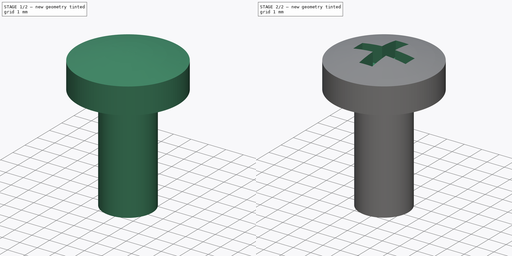
[diagram: build sequence overview — one tinted view per stage of 2, left to right]
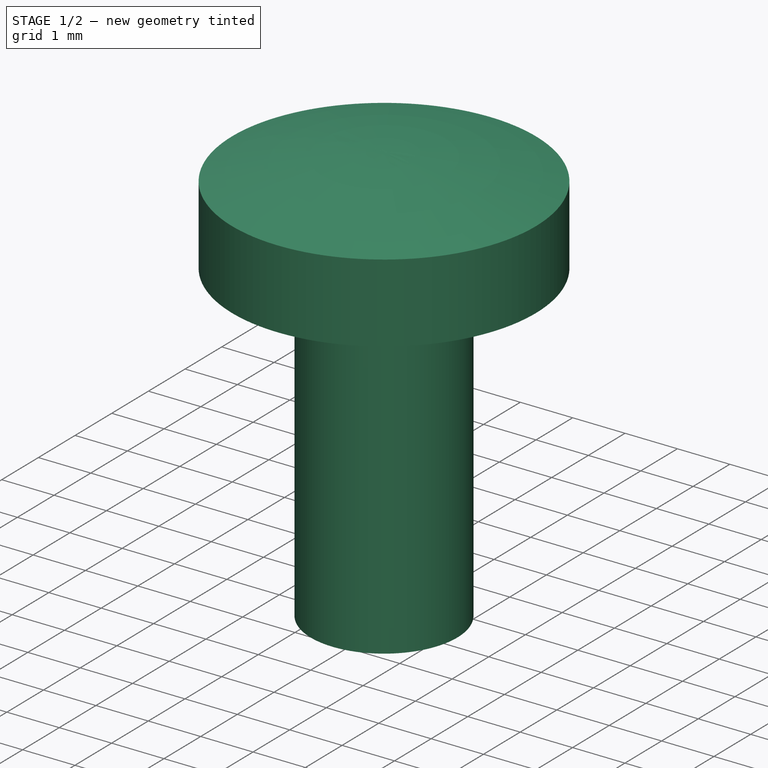
[diagram: stage 1 of 2 — iso view after this stage's code; geometry added in this stage tinted green]
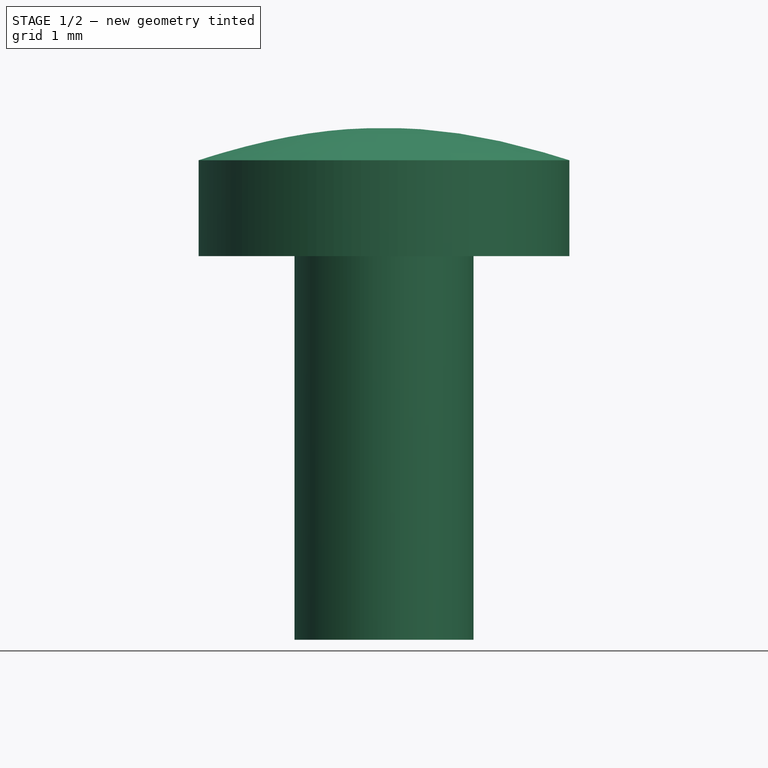
[diagram: stage 1 of 2 — front view after this stage's code; geometry added in this stage tinted green]
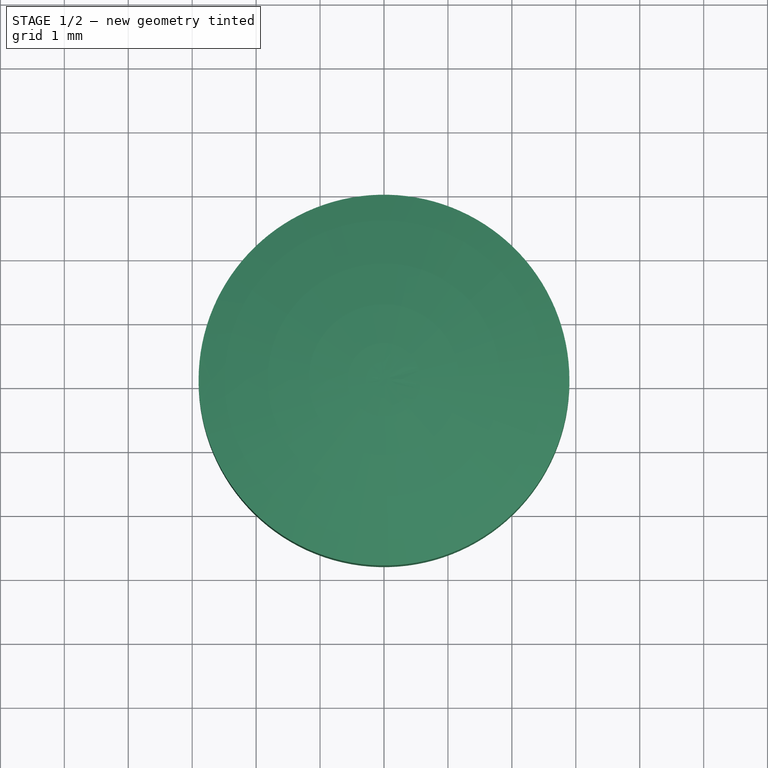
[diagram: stage 1 of 2 — top view after this stage's code; geometry added in this stage tinted green]
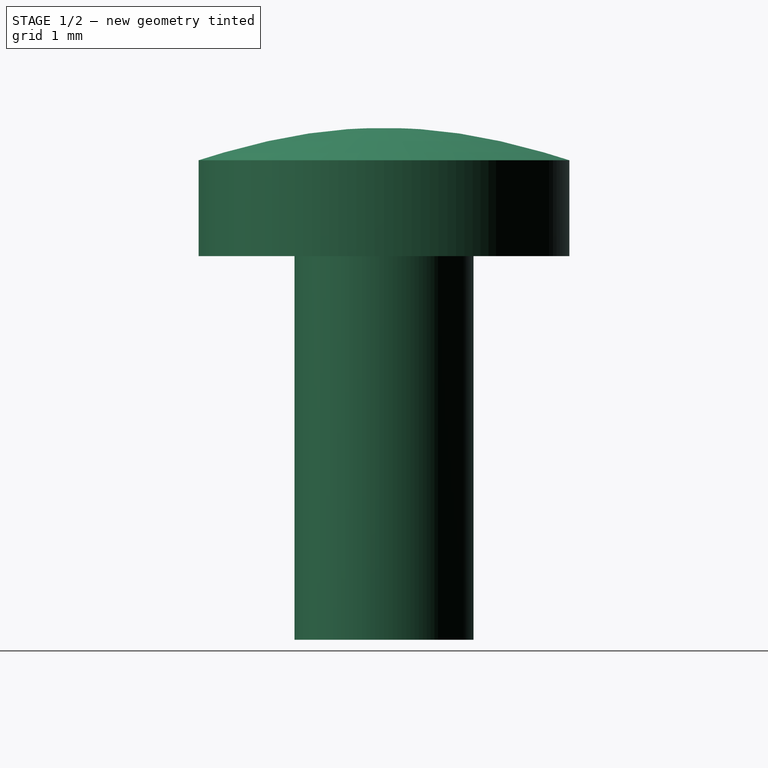
[diagram: stage 1 of 2 — right view after this stage's code; geometry added in this stage tinted green]
FCSTD DOCUMENT  (FreeCAD 0.19R17421 +113 (Git))
Label: Screw_M3x6_T_2.0_Panhead
License: All rights reserved
LicenseURL: http://en.wikipedia.org/wiki/All_rights_reserved
objects: Sketcher::SketchObject×2, PartDesign::Revolution×1, PartDesign::Pocket×1, PartDesign::Body×1
note: 7 computed .brp shape members not serialized (recipe doc carries the construction recipe); baked Part::Feature solids carry a one-line shape summary decoded from their .brp

FEATURE [Sketcher::SketchObject] Sketch
  MapMode = 5
  Placement = pos=(0,0,0) rot=(1,0,0;1.5708rad)
  Support = -> [XZ_Plane]
  sketch-geometry (11):
    g0: LineSegment StartX=0 StartY=-6 StartZ=0 EndX=-1.4 EndY=-6 EndZ=0
    g1: LineSegment StartX=-1.4 StartY=-6 StartZ=0 EndX=-1.4 EndY=0 EndZ=0
    g2: LineSegment StartX=-1.4 StartY=0 StartZ=0 EndX=-2.9 EndY=0 EndZ=0
    g3: LineSegment StartX=-2.9 StartY=0 StartZ=0 EndX=-2.9 EndY=1.5 EndZ=0
    g4: LineSegment StartX=0 StartY=-6 StartZ=0 EndX=0 EndY=2 EndZ=0
    g5: Circle [constr] CenterX=0 CenterY=2 CenterZ=0 NormalX=0 NormalY=0 NormalZ=1 AngleXU=0 Radius=0.3
    g6: Circle [constr] CenterX=-1.27 CenterY=2.02886 CenterZ=0 NormalX=0 NormalY=0 NormalZ=1 AngleXU=0 Radius=0.3
    g7: Circle [constr] CenterX=-2.9 CenterY=1.5 CenterZ=0 NormalX=0 NormalY=0 NormalZ=1 AngleXU=0 Radius=0.3
    g8: BSplineCurve PolesCount=3 KnotsCount=2 Degree=2 IsPeriodic=0
    g9: GeomPoint [constr] X=0 Y=2 Z=0
    g10: GeomPoint [constr] X=-2.9 Y=1.5 Z=0
  constraints (26):
    c: PointOnObject(g0,g-2)
    c: Horizontal(g0)
    c: Coincident(g0,g1)
    c: PointOnObject(g1,g-1)
    c: Vertical(g1)
    c: Coincident(g1,g2)
    c: PointOnObject(g2,g-1)
    c: Coincident(g2,g3)
    c: Vertical(g3)
    c: Coincident(g0,g4)
    c: PointOnObject(g4,g-2)
    c: DistanceX(g0,g0) = 1.4
    c: DistanceX(g2,g-1) = 2.9
    c: DistanceY(g3,g3) = 1.5
    c: DistanceY(g-1,g4) = 2
    c: DistanceY(g0,g-1) = 6
    c: Coincident(g8,g4)
    c: Radius(g5) = 0.3
    c: Equal(g5,g6)
    c: Equal(g5,g7)
    c: Coincident(g8,g3)
    c: InternalAlignment(g5,g8)
    c: InternalAlignment(g6,g8)
    c: InternalAlignment(g7,g8)
    c: InternalAlignment(g9,g8)
    c: InternalAlignment(g10,g8)
FEATURE [PartDesign::Revolution] Revolution
  Angle = 360
  Axis = (0,2e-16,1)
  Base = (0,0,0)
  Placement = pos=(0,0,0) rot=(1,0,0;1.5708rad)
  Profile = -> Sketch
  ReferenceAxis = -> Sketch [V_Axis]
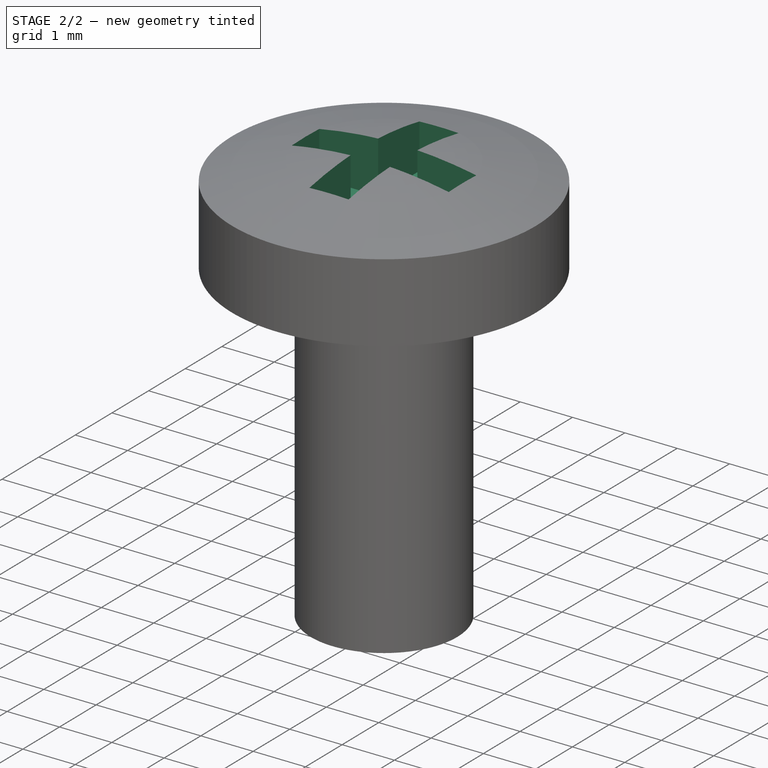
[diagram: stage 2 of 2 — iso view after this stage's code; geometry added in this stage tinted green]
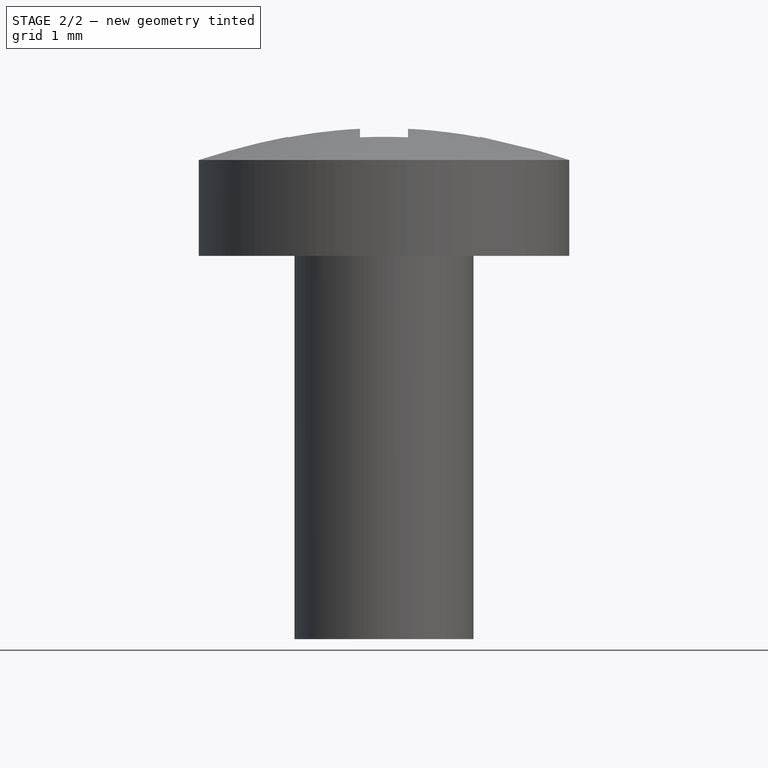
[diagram: stage 2 of 2 — front view after this stage's code; geometry added in this stage tinted green]
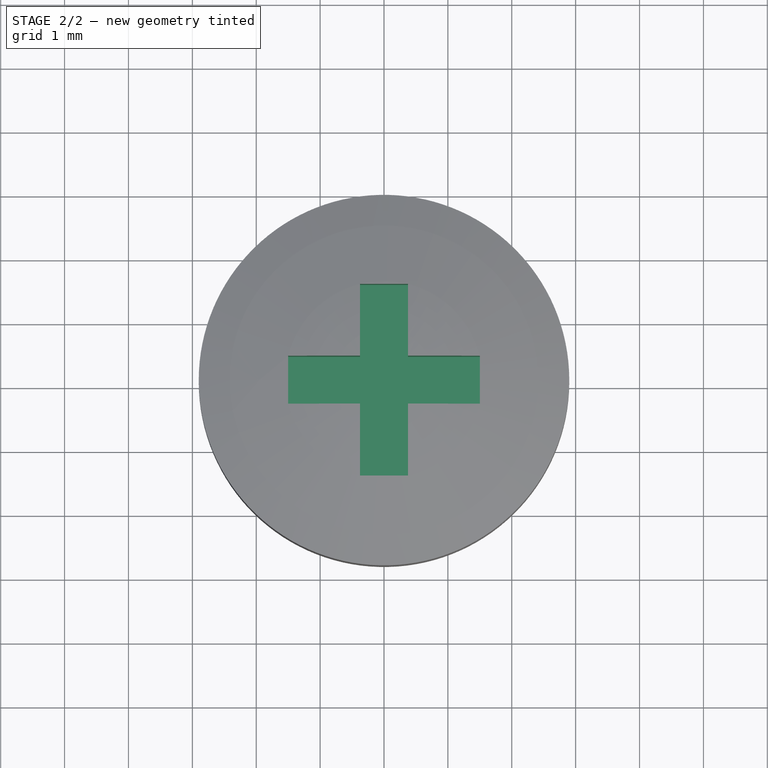
[diagram: stage 2 of 2 — top view after this stage's code; geometry added in this stage tinted green]
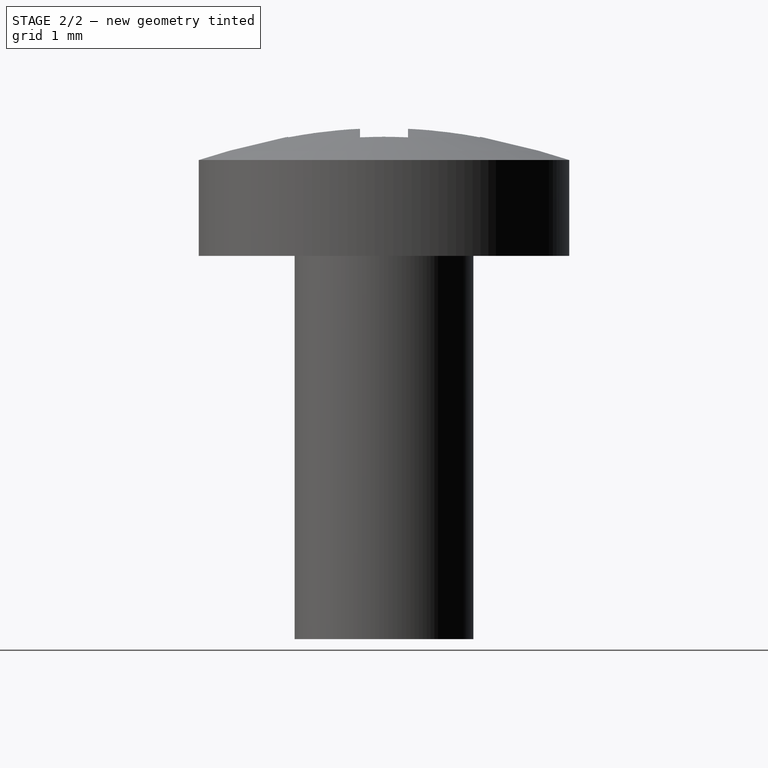
[diagram: stage 2 of 2 — right view after this stage's code; geometry added in this stage tinted green]
FEATURE [Sketcher::SketchObject] Sketch001
  AttachmentOffset = pos=(0,0,1) rot=(0,0,1;0rad)
  MapMode = 5
  Placement = pos=(0,0,1) rot=(0,0,1;0rad)
  Support = -> [XY_Plane]
  sketch-geometry (12):
    g0: LineSegment StartX=0.375 StartY=1.5 StartZ=0 EndX=-0.375 EndY=1.5 EndZ=0
    g1: LineSegment StartX=-0.375 StartY=1.5 StartZ=0 EndX=-0.375 EndY=0.375 EndZ=0
    g2: LineSegment StartX=-0.375 StartY=0.375 StartZ=0 EndX=-1.5 EndY=0.375 EndZ=0
    g3: LineSegment StartX=-1.5 StartY=0.375 StartZ=0 EndX=-1.5 EndY=-0.375 EndZ=0
    g4: LineSegment StartX=-1.5 StartY=-0.375 StartZ=0 EndX=-0.375 EndY=-0.375 EndZ=0
    g5: LineSegment StartX=-0.375 StartY=-0.375 StartZ=0 EndX=-0.375 EndY=-1.5 EndZ=0
    g6: LineSegment StartX=-0.375 StartY=-1.5 StartZ=0 EndX=0.375 EndY=-1.5 EndZ=0
    g7: LineSegment StartX=0.375 StartY=-1.5 StartZ=0 EndX=0.375 EndY=-0.375 EndZ=0
    g8: LineSegment StartX=0.375 StartY=-0.375 StartZ=0 EndX=1.5 EndY=-0.375 EndZ=0
    g9: LineSegment StartX=1.5 StartY=-0.375 StartZ=0 EndX=1.5 EndY=0.375 EndZ=0
    g10: LineSegment StartX=1.5 StartY=0.375 StartZ=0 EndX=0.375 EndY=0.375 EndZ=0
    g11: LineSegment StartX=0.375 StartY=0.375 StartZ=0 EndX=0.375 EndY=1.5 EndZ=0
  constraints (32):
    c: Coincident(g0,g1)
    c: Vertical(g1)
    c: Coincident(g1,g2)
    c: Horizontal(g2)
    c: Coincident(g2,g3)
    c: Vertical(g3)
    c: Coincident(g3,g4)
    c: Horizontal(g4)
    c: Coincident(g4,g5)
    c: Coincident(g5,g6)
    c: Horizontal(g6)
    c: Coincident(g6,g7)
    c: Coincident(g7,g8)
    c: Horizontal(g8)
    c: Coincident(g8,g9)
    c: Coincident(g9,g10)
    c: Horizontal(g10)
    c: Coincident(g10,g11)
    c: Coincident(g11,g0)
    c: Vertical(g7)
    c: Symmetric(g0,g0,g-2)
    c: Symmetric(g9,g8,g-1)
    c: Equal(g0,g6)
    c: Equal(g9,g3)
    c: Equal(g10,g2)
    c: DistanceX(g2,g9) = 3
    c: Equal(g2,g4)
    c: DistanceY(g6,g0) = 3
    c: Symmetric(g0,g6,g-1)
    c: Symmetric(g9,g2,g-2)
    c: DistanceX(g0,g0) = 0.75
    c: DistanceY(g9,g9) = 0.75
FEATURE [PartDesign::Pocket] Pocket
  BaseFeature = -> Revolution
  Length = 5
  Length2 = 100
  Placement = pos=(0,0,0) rot=(1,0,0;1.5708rad)
  Profile = -> Sketch001
  Reversed = true
  Type = 1
FEATURE [PartDesign::Body] Body  label="Screw_M3x6_T_2.0_Panhead"
  Group = -> [Sketch,Revolution,Sketch001,Pocket]
  Origin = -> Origin
  Tip = -> Pocket
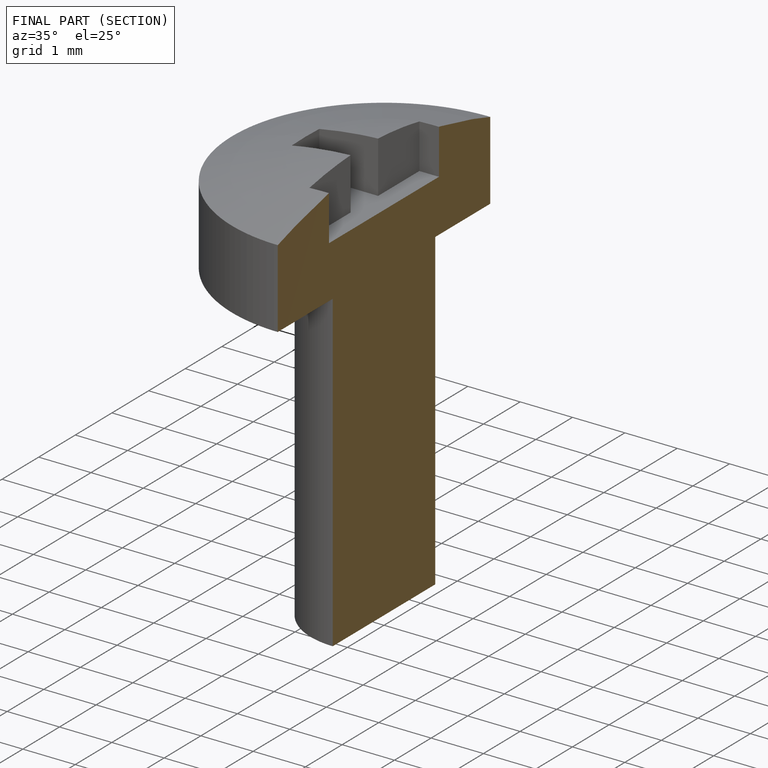
[diagram: finished part — half-section view (interior)]
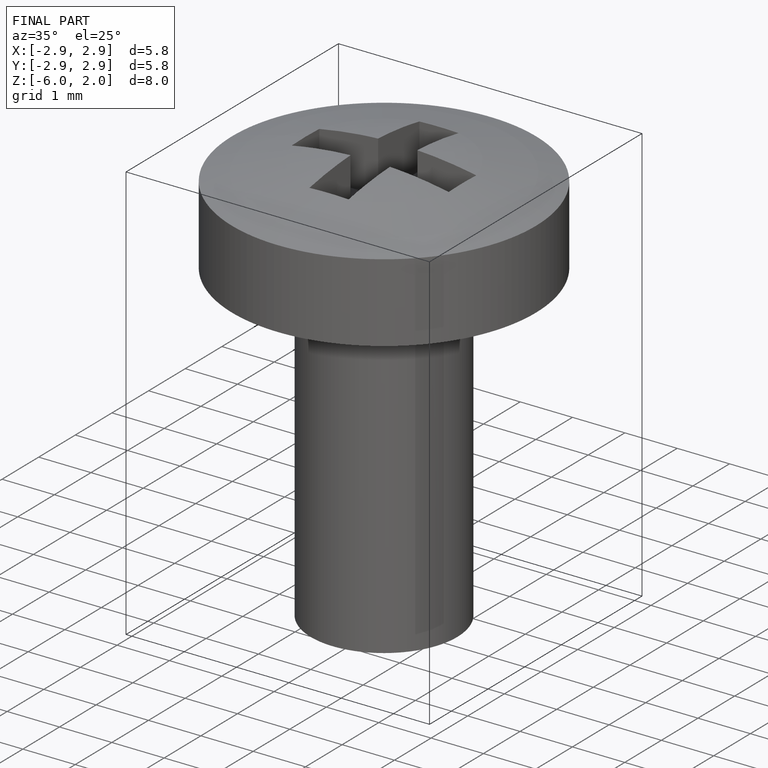
[diagram: finished part — iso view with bounding-box wireframe]
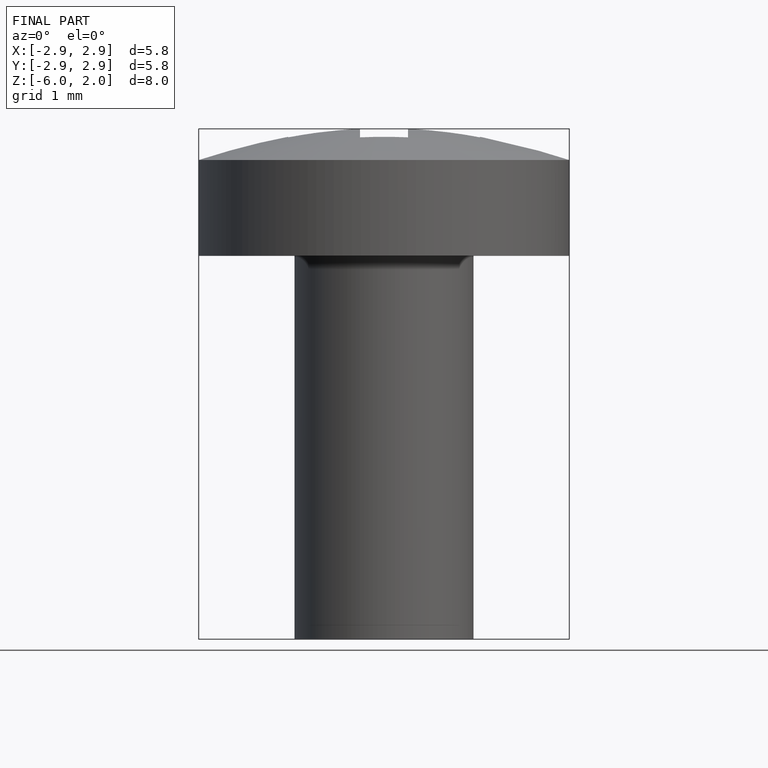
[diagram: finished part — front view with bounding-box wireframe]
